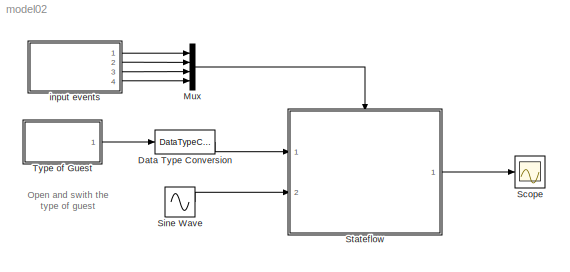
MODEL model02
KIND model
BLOCK [DataTypeConversion] Data Type Conversion
  OutDataTypeMode = int8
  RndMeth = Floor
  SaturateOnIntegerOverflow = off
BLOCK [Mux] Mux
  DisplayOption = bar
  Ports = [4, 1]
BLOCK [Scope] Scope
  DataFormat = StructureWithTime
  Floating = off
  NumInputPorts = 1
  Ports = [1]
  SampleTime = 0
  TimeRange = 10
  YMax = 4
  YMin = -4
BLOCK [Sin] Sine Wave
  Amplitude = 2
  Frequency = 10
  Ports = [0, 1]
  SampleTime = 0.1
  Samples = 20
  SineType = Time based
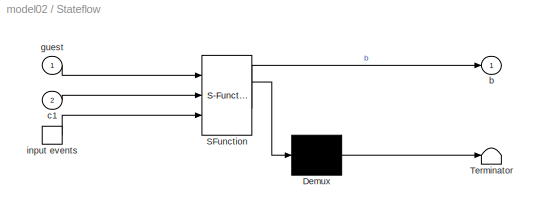
BLOCK [SubSystem] Stateflow
  MaskDescription = Stateflow diagram
  MaskDisplay = plot(sf('Private','sfblk','xIcon'),sf('Private','sfblk','yIcon'));text(0.5,0,sf('Private', 'sfblk', 'tIcon'),'HorizontalAl','Center','VerticalAl','Bottom');
  MaskHideContents = off
  MaskIconFrame = off
  MaskIconOpaque = off
  MaskIconRotate = none
  MaskIconUnits = autoscale
  MaskSelfModifiable = on
  MaskType = Stateflow
  MinAlgLoopOccurrences = off
  Ports = [2, 1, 0, 1]
  RTWSystemCode = Auto
  TreatAsAtomicUnit = on
BLOCK [Demux] Stateflow/ Demux 
  Outputs = 1
  Ports = [1, 1]
BLOCK [S-Function] Stateflow/ SFunction 
  FunctionName = sf_sfun
  PortCounts = [3 2]
  Ports = [3, 2]
  Tag = Stateflow S-Function model02 1
BLOCK [Terminator] Stateflow/ Terminator 
BLOCK [TriggerPort] Stateflow/ input events 
  Ports = [0, 1]
  ShowOutputPort = on
BLOCK [Outport] Stateflow/b
  BusOutputAsStruct = off
  IconDisplay = Port number
BLOCK [Inport] Stateflow/c1
  IconDisplay = Port number
  Port = 2
BLOCK [Inport] Stateflow/guest
  IconDisplay = Port number
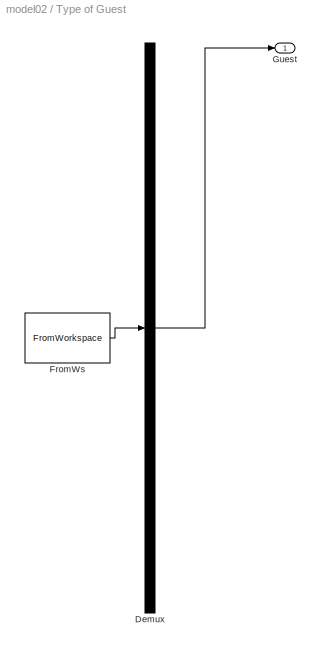
BLOCK [SubSystem] Type of Guest
  ClipboardFcn = sigbuilder_block('clipboard');
  CloseFcn = sigbuilder_block('close');
  CopyFcn = sigbuilder_block('copy');
  DeleteFcn = sigbuilder_block('delete');
  LoadFcn = sigbuilder_block('load');
  MaskDescription = Sigbuilder GUI
  MaskDisplay = plot(0,0,100,100,[10,10,40,40,10],[80,20,20,80,80],[40,10],[50,50], [40,27,10],[65,72,56],[40,25,25,10],[28,28,43,43]);
  MaskHideContents = off
  MaskIconFrame = on
  MaskIconOpaque = off
  MaskIconRotate = port
  MaskIconUnits = autoscale
  MaskInitialization = if ~strcmp(get_param(bdroot(gcbh),'SimulationStatus'),'stopped') tuvar = sigbuilder_block('maskInit'); end
  MaskType = Sigbuilder block
  MinAlgLoopOccurrences = off
  ModelCloseFcn = sigbuilder_block('modelClose');
  NameChangeFcn = sigbuilder_block('namechange');
  OpenFcn = sigbuilder_block('open',[147.75 115.5 550.5 360 ]);
  Ports = [0, 1]
  PreSaveFcn = sigbuilder_block('preSave');
  RTWSystemCode = Auto
  StartFcn = sigbuilder_block('start');
  StopFcn = sigbuilder_block('stop');
  Tag = STV Subsys
  TreatAsAtomicUnit = off
BLOCK [Demux] Type of Guest/Demux
  Outputs = 1
  Ports = [1, 1]
  Tag = STV Demux
BLOCK [FromWorkspace] Type of Guest/FromWs
  SampleTime = 0
  SigBuilderData = DataTag0
  Tag = STV FromWs
  VariableName = tuvar
  VnvData = DataTag1
  ZeroCross = on
BLOCK [Outport] Type of Guest/Guest
  BusOutputAsStruct = off
  IconDisplay = Port number
  Tag = STV Outport
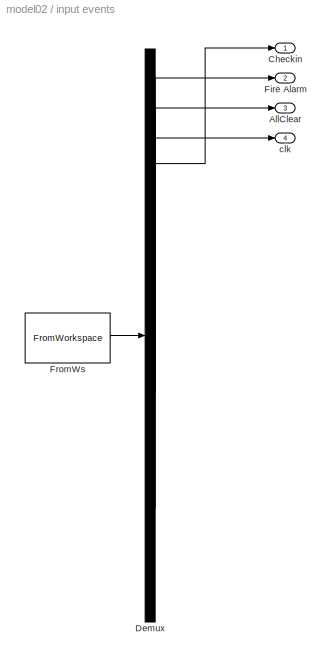
BLOCK [SubSystem] input events
  ClipboardFcn = sigbuilder_block('clipboard');
  CloseFcn = sigbuilder_block('close');
  CopyFcn = sigbuilder_block('copy');
  DeleteFcn = sigbuilder_block('delete');
  LoadFcn = sigbuilder_block('load');
  MaskDescription = Sigbuilder GUI
  MaskDisplay = plot(0,0,100,100,[10,10,40,40,10],[80,20,20,80,80],[40,10],[50,50], [40,27,10],[65,72,56],[40,25,25,10],[28,28,43,43]);
  MaskHideContents = off
  MaskIconFrame = on
  MaskIconOpaque = off
  MaskIconRotate = port
  MaskIconUnits = autoscale
  MaskInitialization = if ~strcmp(get_param(bdroot(gcbh),'SimulationStatus'),'stopped') tuvar = sigbuilder_block('maskInit'); end
  MaskType = Sigbuilder block
  MinAlgLoopOccurrences = off
  ModelCloseFcn = sigbuilder_block('modelClose');
  NameChangeFcn = sigbuilder_block('namechange');
  OpenFcn = sigbuilder_block('open',[121.5 125.25 549.75 360 ]);
  Ports = [0, 4]
  PreSaveFcn = sigbuilder_block('preSave');
  RTWSystemCode = Auto
  StartFcn = sigbuilder_block('start');
  StopFcn = sigbuilder_block('stop');
  Tag = STV Subsys
  TreatAsAtomicUnit = off
BLOCK [Outport] input events/AllClear
  BusOutputAsStruct = off
  IconDisplay = Port number
  Port = 3
  Tag = STV Outport
BLOCK [Outport] input events/Checkin
  BusOutputAsStruct = off
  IconDisplay = Port number
  Tag = STV Outport
BLOCK [Demux] input events/Demux
  Ports = [1, 4]
  Tag = STV Demux
BLOCK [Outport] input events/Fire Alarm
  BusOutputAsStruct = off
  IconDisplay = Port number
  Port = 2
  Tag = STV Outport
BLOCK [FromWorkspace] input events/FromWs
  SampleTime = 0
  SigBuilderData = DataTag2
  Tag = STV FromWs
  VariableName = tuvar
  VnvData = DataTag3
  ZeroCross = on
BLOCK [Outport] input events/clk
  BusOutputAsStruct = off
  IconDisplay = Port number
  Port = 4
  Tag = STV Outport
ANNOTATION (root): Open and swith the \ntype of guest
LINE Data Type Conversion:1 -> Stateflow:1
LINE Mux:1 -> Stateflow:trigger
LINE Sine Wave:1 -> Stateflow:2
LINE Stateflow/ Demux :1 -> Stateflow/ Terminator :1
LINE Stateflow/ SFunction :1 -> Stateflow/ Demux :1
LINE Stateflow/ SFunction :2 -> Stateflow/b:1
LINE Stateflow/ input events :1 -> Stateflow/ SFunction :3
LINE Stateflow/c1:1 -> Stateflow/ SFunction :2
LINE Stateflow/guest:1 -> Stateflow/ SFunction :1
LINE Stateflow:1 -> Scope:1
LINE Type of Guest/Demux:1 -> Type of Guest/Guest:1
LINE Type of Guest/FromWs:1 -> Type of Guest/Demux:1
LINE Type of Guest:1 -> Data Type Conversion:1
LINE input events/Demux:1 -> input events/Checkin:1
LINE input events/Demux:2 -> input events/Fire Alarm:1
LINE input events/Demux:3 -> input events/AllClear:1
LINE input events/Demux:4 -> input events/clk:1
LINE input events/FromWs:1 -> input events/Demux:1
LINE input events:1 -> Mux:1
LINE input events:2 -> Mux:2
LINE input events:3 -> Mux:3
LINE input events:4 -> Mux:4
CHART Stateflow states=15 transitions=30
  STATE_LABEL 'NonSmokingRoom\\n entry: b=unpack();\\n during: b=callhome();\\n exit: b=pack();'
  STATE_LABEL 'SmokingRoom'
  STATE_LABEL 'ExecutiveSuite'
  STATE_LABEL 'MasterBed'
  STATE_LABEL 'HotelStateflow'
  STATE_LABEL 'SecondBed'
  STATE_LABEL 'FamilySuite'
  STATE_LABEL 'MasterBed'
  STATE_LABEL 'SecondBed'
  STATE_LABEL 'AssemblyPoint'
  STATE_LABEL 'y=is_family(x)'
  STATE_LABEL 'y=pack'
  STATE_LABEL 'y=callhome'
  STATE_LABEL 'y=unpack'
  STATE_LABEL 'wait'
